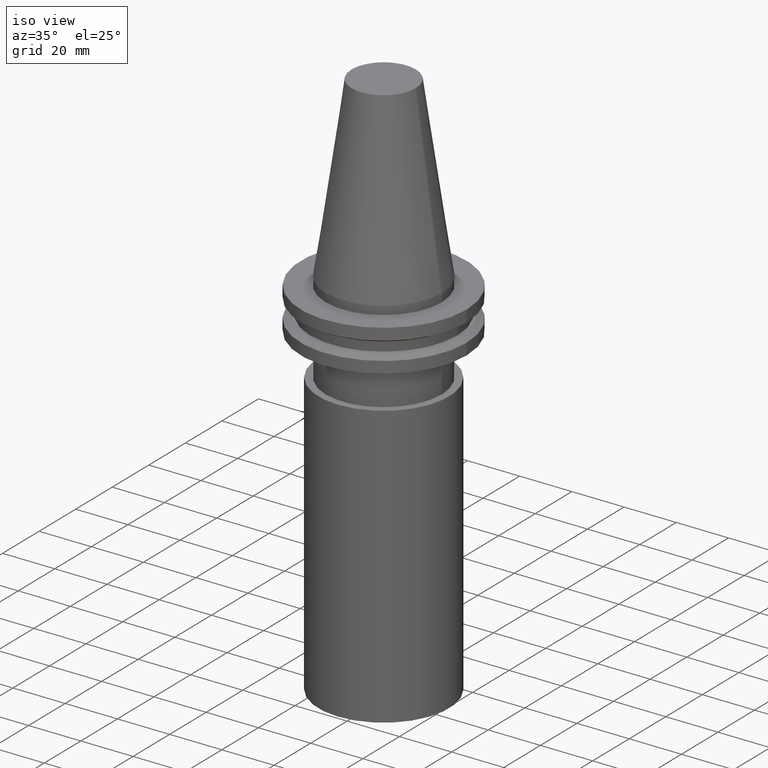
[diagram: clean part render]
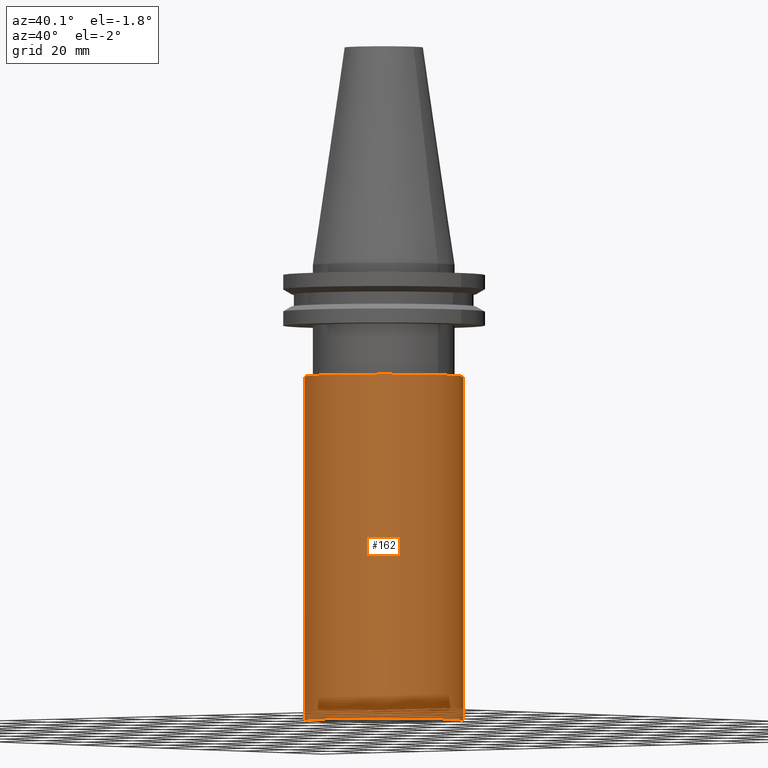
[diagram: tour spotlight — one face highlighted and labeled with its STEP entity id]
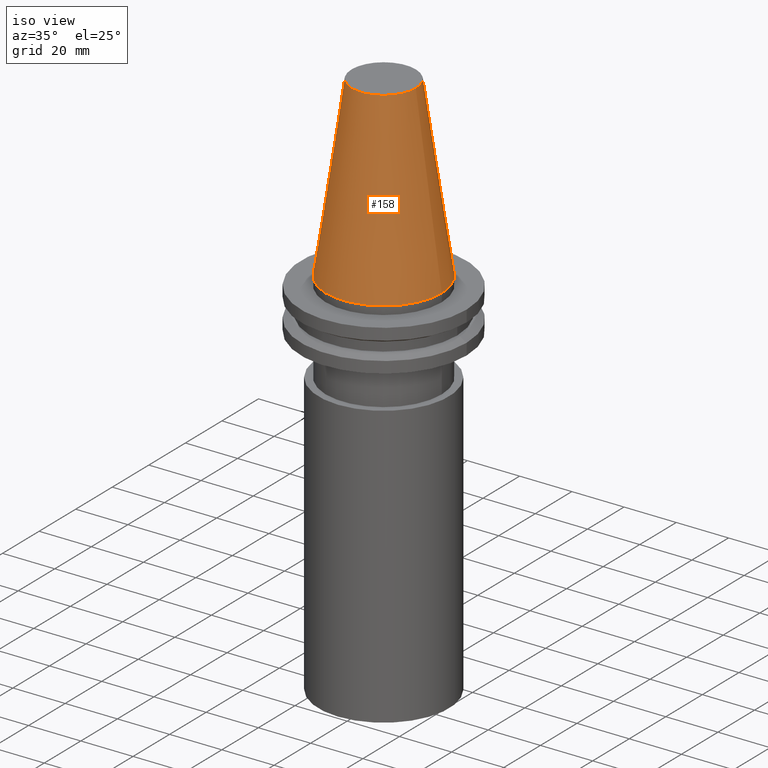
[diagram: tour spotlight — one face highlighted and labeled with its STEP entity id]
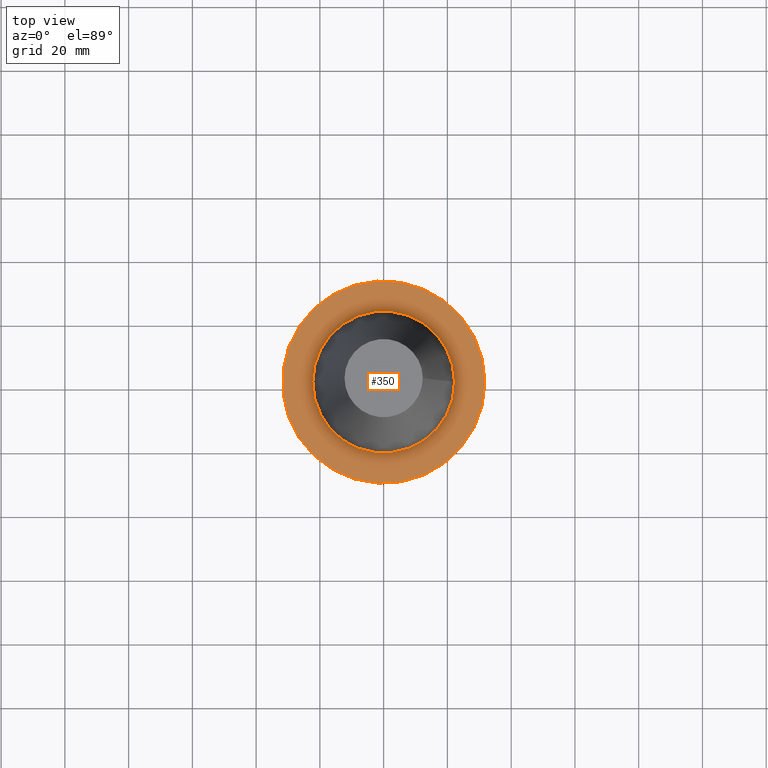
[diagram: tour spotlight — one face highlighted and labeled with its STEP entity id]
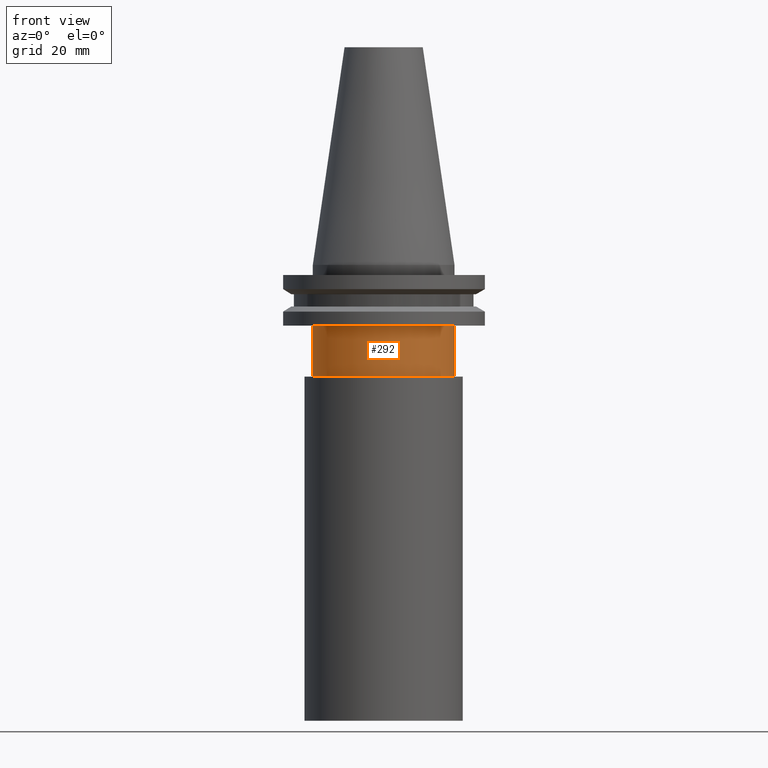
[diagram: tour spotlight — one face highlighted and labeled with its STEP entity id]
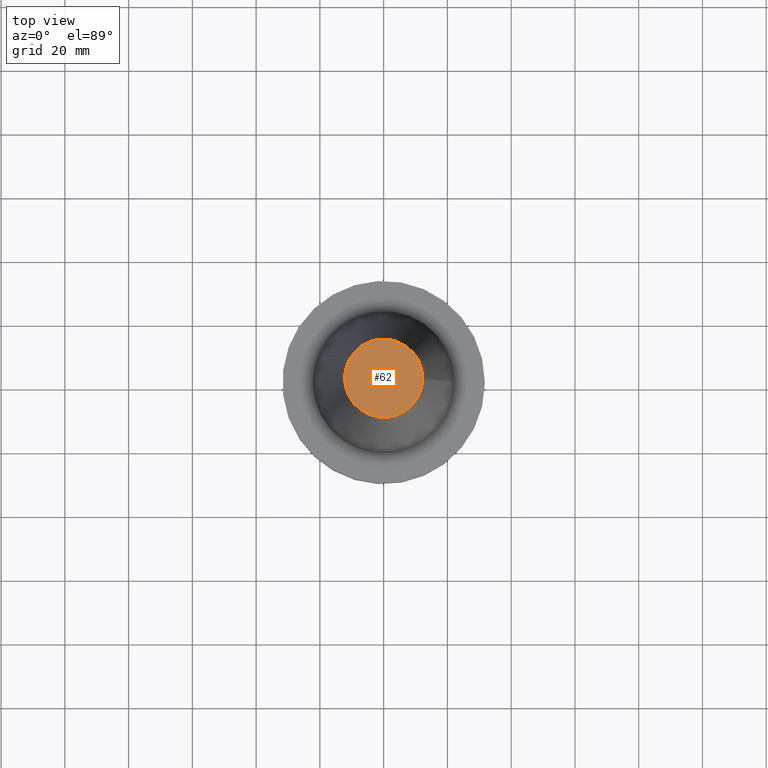
[diagram: tour spotlight — one face highlighted and labeled with its STEP entity id]
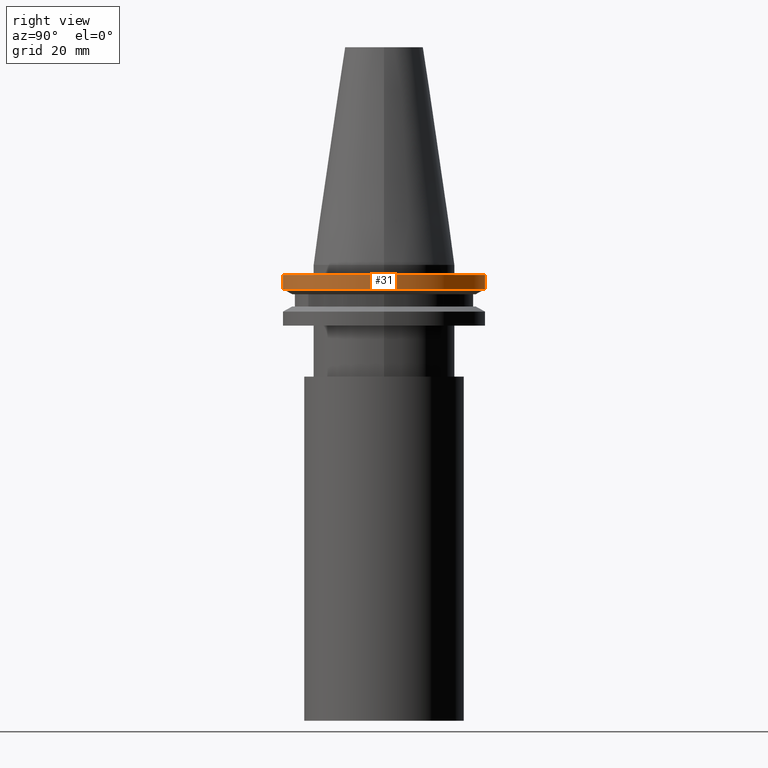
[diagram: tour spotlight — one face highlighted and labeled with its STEP entity id]
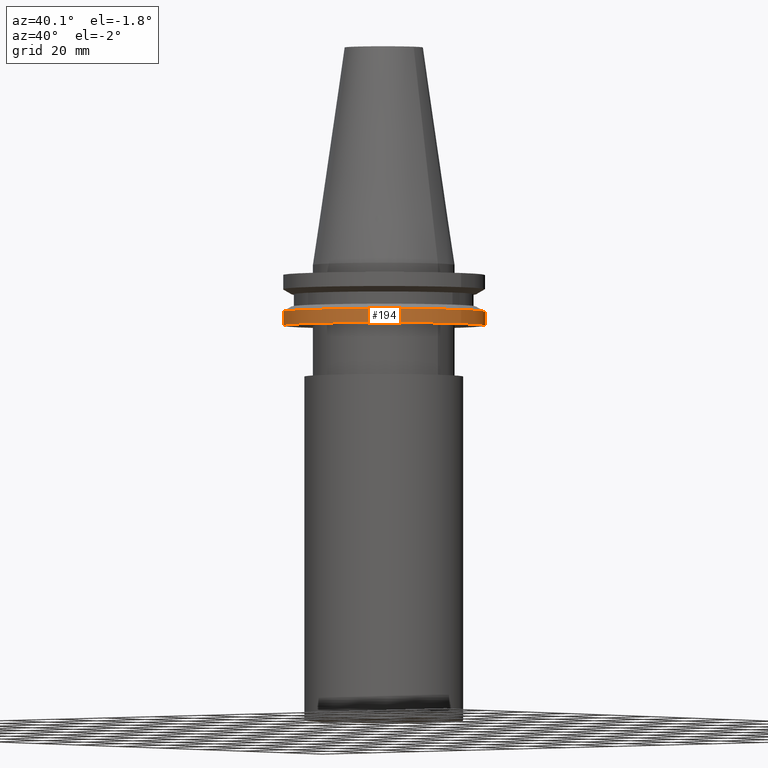
[diagram: tour spotlight — one face highlighted and labeled with its STEP entity id]
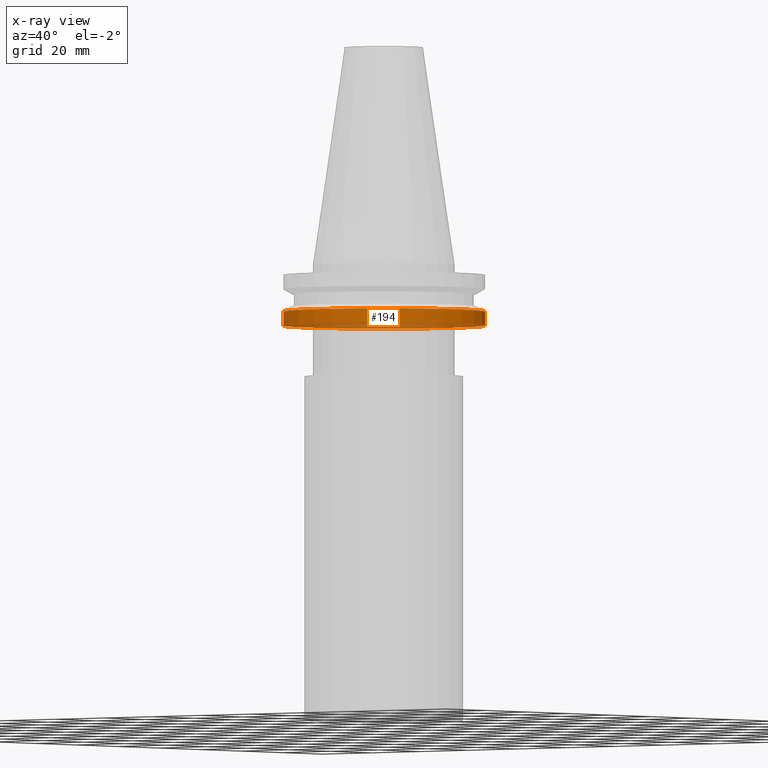
[diagram: x-ray of the same camera — body ghosted, this tour face saturated]
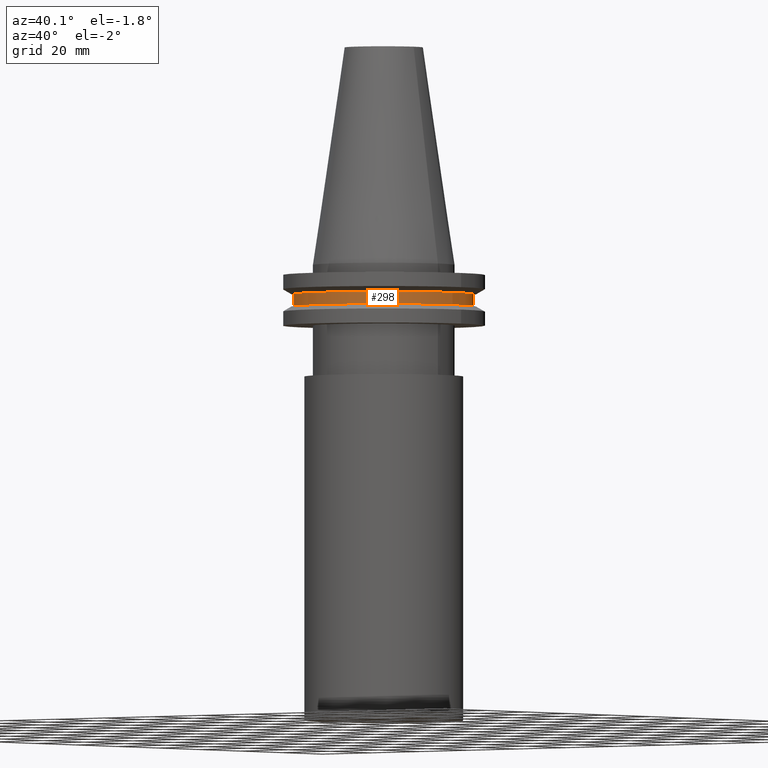
[diagram: tour spotlight — one face highlighted and labeled with its STEP entity id]
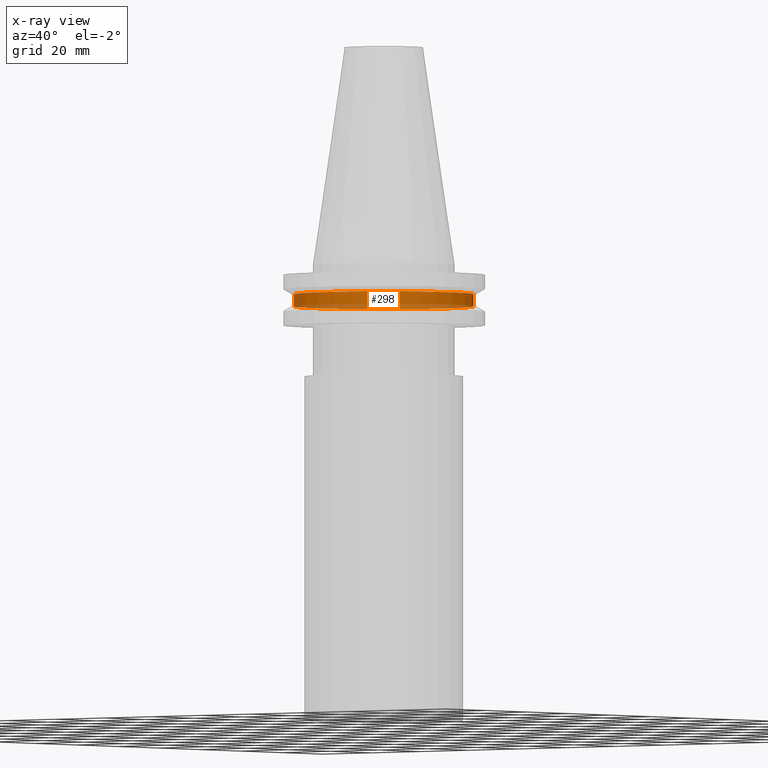
[diagram: x-ray of the same camera — body ghosted, this tour face saturated]
A machine part: a face-by-face anatomy tour. The part has 16 B-rep faces; the first image is the clean iso view, then the 8 largest visible faces are spotlighted one at a time (largest first), each with its STEP entity span.

Face 1 — auxiliary view, entity #162. In plain terms, the highlighted cylindrical surface (bore or boss wall) has radius 25 mm, axis along (-0, 0, -1).
Definition (entity closure, byte-faithful):
#2 = FACE_OUTER_BOUND ( 'NONE', #49, .T. ) ;
#7 = CYLINDRICAL_SURFACE ( 'NONE', #200, 24.99999999999999289 ) ;
#18 = DIRECTION ( 'NONE',  ( -0.000000000000000000, 9.075659465658940137E-17, -1.000000000000000000 ) ) ;
#19 = EDGE_LOOP ( 'NONE', ( #139 ) ) ;
#24 = VERTEX_POINT ( 'NONE', #91 ) ;
#37 = CARTESIAN_POINT ( 'NONE',  ( 0.000000000000000000, 9.797174393178824474E-15, -143.0000000000000000 ) ) ;
#39 = DIRECTION ( 'NONE',  ( -0.000000000000000000, 9.075659465658940137E-17, -1.000000000000000000 ) ) ;
#49 = EDGE_LOOP ( 'NONE', ( #111 ) ) ;
#58 = CARTESIAN_POINT ( 'NONE',  ( 0.000000000000000000, 25.00000000000000000, -35.04999999999999716 ) ) ;
#86 = DIRECTION ( 'NONE',  ( -0.000000000000000000, 9.075659465658940137E-17, -1.000000000000000000 ) ) ;
#91 = CARTESIAN_POINT ( 'NONE',  ( 0.000000000000000000, 25.00000000000000000, -143.0000000000000000 ) ) ;
#100 = EDGE_CURVE ( 'NONE', #212, #212, #242, .T. ) ;
#111 = ORIENTED_EDGE ( 'NONE', *, *, #235, .F. ) ;
#139 = ORIENTED_EDGE ( 'NONE', *, *, #100, .T. ) ;
#140 = AXIS2_PLACEMENT_3D ( 'NONE', #180, #86, #213 ) ;
#162 = ADVANCED_FACE ( 'NONE', ( #307, #2 ), #7, .T. ) ;
#180 = CARTESIAN_POINT ( 'NONE',  ( 0.000000000000000000, -1.540743955509788682E-30, -35.04999999999999716 ) ) ;
#200 = AXIS2_PLACEMENT_3D ( 'NONE', #37, #39, #277 ) ;
#212 = VERTEX_POINT ( 'NONE', #58 ) ;
#213 = DIRECTION ( 'NONE',  ( 0.000000000000000000, 1.000000000000000000, 0.000000000000000000 ) ) ;
#235 = EDGE_CURVE ( 'NONE', #24, #24, #243, .T. ) ;
#242 = CIRCLE ( 'NONE', #140, 25.00000000000000000 ) ;
#243 = CIRCLE ( 'NONE', #263, 24.99999999999998934 ) ;
#263 = AXIS2_PLACEMENT_3D ( 'NONE', #341, #18, #283 ) ;
#277 = DIRECTION ( 'NONE',  ( 0.000000000000000000, 1.000000000000000000, 0.000000000000000000 ) ) ;
#283 = DIRECTION ( 'NONE',  ( 0.000000000000000000, 1.000000000000000000, 0.000000000000000000 ) ) ;
#307 = FACE_OUTER_BOUND ( 'NONE', #19, .T. ) ;
#341 = CARTESIAN_POINT ( 'NONE',  ( 0.000000000000000000, 9.797174393178824474E-15, -143.0000000000000000 ) ) ;

Face 2 — iso view, entity #158. In plain terms, the highlighted conical surface has half-angle 8.297 deg.
Definition (entity closure, byte-faithful):
#21 = ORIENTED_EDGE ( 'NONE', *, *, #230, .F. ) ;
#27 = CARTESIAN_POINT ( 'NONE',  ( 12.27178102086201150, 0.000000000000000000, 68.25000000000000000 ) ) ;
#32 = DIRECTION ( 'NONE',  ( 1.000000000000000000, 0.000000000000000000, 0.000000000000000000 ) ) ;
#34 = DIRECTION ( 'NONE',  ( -0.000000000000000000, -0.000000000000000000, 1.000000000000000000 ) ) ;
#53 = VERTEX_POINT ( 'NONE', #27 ) ;
#63 = DIRECTION ( 'NONE',  ( 0.000000000000000000, 0.000000000000000000, -1.000000000000000000 ) ) ;
#70 = DIRECTION ( 'NONE',  ( -0.000000000000000000, -0.000000000000000000, 1.000000000000000000 ) ) ;
#83 = AXIS2_PLACEMENT_3D ( 'NONE', #229, #70, #289 ) ;
#101 = EDGE_CURVE ( 'NONE', #300, #300, #285, .T. ) ;
#114 = FACE_BOUND ( 'NONE', #198, .T. ) ;
#158 = ADVANCED_FACE ( 'NONE', ( #114, #251 ), #254, .T. ) ;
#186 = DIRECTION ( 'NONE',  ( -1.000000000000000000, 0.000000000000000000, 0.000000000000000000 ) ) ;
#198 = EDGE_LOOP ( 'NONE', ( #21 ) ) ;
#229 = CARTESIAN_POINT ( 'NONE',  ( 0.000000000000000000, 0.000000000000000000, 68.25000000000000000 ) ) ;
#230 = EDGE_CURVE ( 'NONE', #53, #53, #358, .T. ) ;
#251 = FACE_OUTER_BOUND ( 'NONE', #320, .T. ) ;
#254 = CONICAL_SURFACE ( 'NONE', #313, 22.22500000000000142, 0.1448138465474119174 ) ;
#285 = CIRCLE ( 'NONE', #334, 22.22500000000000142 ) ;
#289 = DIRECTION ( 'NONE',  ( 1.000000000000000000, 0.000000000000000000, 0.000000000000000000 ) ) ;
#300 = VERTEX_POINT ( 'NONE', #386 ) ;
#313 = AXIS2_PLACEMENT_3D ( 'NONE', #336, #63, #186 ) ;
#320 = EDGE_LOOP ( 'NONE', ( #352 ) ) ;
#327 = CARTESIAN_POINT ( 'NONE',  ( 0.000000000000000000, 0.000000000000000000, 0.000000000000000000 ) ) ;
#334 = AXIS2_PLACEMENT_3D ( 'NONE', #327, #34, #32 ) ;
#336 = CARTESIAN_POINT ( 'NONE',  ( 0.000000000000000000, 0.000000000000000000, 0.000000000000000000 ) ) ;
#352 = ORIENTED_EDGE ( 'NONE', *, *, #101, .T. ) ;
#358 = CIRCLE ( 'NONE', #83, 12.27178102086201150 ) ;
#386 = CARTESIAN_POINT ( 'NONE',  ( 22.22500000000000142, 0.000000000000000000, 0.000000000000000000 ) ) ;

Face 3 — top view, entity #350. In plain terms, the highlighted planar face has unit normal (0, 0, -1).
Definition (entity closure, byte-faithful):
#28 = AXIS2_PLACEMENT_3D ( 'NONE', #88, #384, #240 ) ;
#35 = CIRCLE ( 'NONE', #214, 31.75000000000000000 ) ;
#54 = DIRECTION ( 'NONE',  ( 1.000000000000000000, 0.000000000000000000, 0.000000000000000000 ) ) ;
#81 = EDGE_CURVE ( 'NONE', #326, #326, #35, .T. ) ;
#88 = CARTESIAN_POINT ( 'NONE',  ( 0.000000000000000000, 0.000000000000000000, -3.174999999999997158 ) ) ;
#113 = CARTESIAN_POINT ( 'NONE',  ( 0.000000000000000000, 0.000000000000000000, -3.174999999999997158 ) ) ;
#119 = CARTESIAN_POINT ( 'NONE',  ( 31.75000000000000000, 0.000000000000000000, -3.174999999999997158 ) ) ;
#137 = FACE_OUTER_BOUND ( 'NONE', #146, .T. ) ;
#143 = EDGE_CURVE ( 'NONE', #355, #355, #199, .T. ) ;
#146 = EDGE_LOOP ( 'NONE', ( #321 ) ) ;
#170 = CARTESIAN_POINT ( 'NONE',  ( 0.000000000000000000, 31.75000000000000000, -3.174999999999999378 ) ) ;
#174 = ORIENTED_EDGE ( 'NONE', *, *, #143, .F. ) ;
#193 = AXIS2_PLACEMENT_3D ( 'NONE', #170, #375, #287 ) ;
#199 = CIRCLE ( 'NONE', #28, 22.22500000000000142 ) ;
#208 = CARTESIAN_POINT ( 'NONE',  ( 22.22500000000000142, 0.000000000000000000, -3.174999999999997158 ) ) ;
#214 = AXIS2_PLACEMENT_3D ( 'NONE', #113, #247, #54 ) ;
#240 = DIRECTION ( 'NONE',  ( 1.000000000000000000, 0.000000000000000000, 0.000000000000000000 ) ) ;
#247 = DIRECTION ( 'NONE',  ( -0.000000000000000000, -0.000000000000000000, 1.000000000000000000 ) ) ;
#259 = PLANE ( 'NONE',  #193 ) ;
#287 = DIRECTION ( 'NONE',  ( -1.000000000000000000, 0.000000000000000000, -0.000000000000000000 ) ) ;
#321 = ORIENTED_EDGE ( 'NONE', *, *, #81, .T. ) ;
#326 = VERTEX_POINT ( 'NONE', #119 ) ;
#348 = FACE_BOUND ( 'NONE', #379, .T. ) ;
#350 = ADVANCED_FACE ( 'NONE', ( #348, #137 ), #259, .F. ) ;
#355 = VERTEX_POINT ( 'NONE', #208 ) ;
#375 = DIRECTION ( 'NONE',  ( 0.000000000000000000, 0.000000000000000000, -1.000000000000000000 ) ) ;
#379 = EDGE_LOOP ( 'NONE', ( #174 ) ) ;
#384 = DIRECTION ( 'NONE',  ( -0.000000000000000000, -0.000000000000000000, 1.000000000000000000 ) ) ;

Face 4 — front view, entity #292. In plain terms, the highlighted cylindrical surface (bore or boss wall) has radius 22.225 mm, axis along (-0, -0, 1).
Definition (entity closure, byte-faithful):
#6 = EDGE_CURVE ( 'NONE', #133, #133, #207, .T. ) ;
#15 = FACE_OUTER_BOUND ( 'NONE', #102, .T. ) ;
#48 = DIRECTION ( 'NONE',  ( -0.000000000000000000, -0.000000000000000000, 1.000000000000000000 ) ) ;
#79 = DIRECTION ( 'NONE',  ( 1.000000000000000000, 0.000000000000000000, 0.000000000000000000 ) ) ;
#102 = EDGE_LOOP ( 'NONE', ( #376 ) ) ;
#110 = FACE_OUTER_BOUND ( 'NONE', #258, .T. ) ;
#133 = VERTEX_POINT ( 'NONE', #239 ) ;
#141 = CARTESIAN_POINT ( 'NONE',  ( 0.000000000000000000, 0.000000000000000000, -35.04999999999999716 ) ) ;
#142 = AXIS2_PLACEMENT_3D ( 'NONE', #141, #371, #282 ) ;
#171 = ORIENTED_EDGE ( 'NONE', *, *, #364, .T. ) ;
#207 = CIRCLE ( 'NONE', #339, 22.22500000000000142 ) ;
#225 = DIRECTION ( 'NONE',  ( 1.000000000000000000, 0.000000000000000000, 0.000000000000000000 ) ) ;
#233 = CARTESIAN_POINT ( 'NONE',  ( 0.000000000000000000, 0.000000000000000000, 68.25000000000000000 ) ) ;
#239 = CARTESIAN_POINT ( 'NONE',  ( 22.22500000000000142, 0.000000000000000000, -19.04999999999999716 ) ) ;
#258 = EDGE_LOOP ( 'NONE', ( #171 ) ) ;
#264 = CYLINDRICAL_SURFACE ( 'NONE', #280, 22.22500000000000142 ) ;
#266 = CARTESIAN_POINT ( 'NONE',  ( 22.22499999999999787, 0.000000000000000000, -35.04999999999999716 ) ) ;
#280 = AXIS2_PLACEMENT_3D ( 'NONE', #233, #315, #225 ) ;
#282 = DIRECTION ( 'NONE',  ( 1.000000000000000000, 0.000000000000000000, 0.000000000000000000 ) ) ;
#292 = ADVANCED_FACE ( 'NONE', ( #15, #110 ), #264, .T. ) ;
#315 = DIRECTION ( 'NONE',  ( -0.000000000000000000, -0.000000000000000000, 1.000000000000000000 ) ) ;
#318 = CARTESIAN_POINT ( 'NONE',  ( 0.000000000000000000, 0.000000000000000000, -19.04999999999999716 ) ) ;
#329 = VERTEX_POINT ( 'NONE', #266 ) ;
#330 = CIRCLE ( 'NONE', #142, 22.22499999999999787 ) ;
#339 = AXIS2_PLACEMENT_3D ( 'NONE', #318, #48, #79 ) ;
#364 = EDGE_CURVE ( 'NONE', #329, #329, #330, .T. ) ;
#371 = DIRECTION ( 'NONE',  ( -0.000000000000000000, -0.000000000000000000, 1.000000000000000000 ) ) ;
#376 = ORIENTED_EDGE ( 'NONE', *, *, #6, .F. ) ;

Face 5 — top view, entity #62. In plain terms, the highlighted planar face has unit normal (0, 0, -1).
Definition (entity closure, byte-faithful):
#27 = CARTESIAN_POINT ( 'NONE',  ( 12.27178102086201150, 0.000000000000000000, 68.25000000000000000 ) ) ;
#53 = VERTEX_POINT ( 'NONE', #27 ) ;
#61 = PLANE ( 'NONE',  #388 ) ;
#62 = ADVANCED_FACE ( 'NONE', ( #209 ), #61, .F. ) ;
#70 = DIRECTION ( 'NONE',  ( -0.000000000000000000, -0.000000000000000000, 1.000000000000000000 ) ) ;
#83 = AXIS2_PLACEMENT_3D ( 'NONE', #229, #70, #289 ) ;
#148 = DIRECTION ( 'NONE',  ( 0.000000000000000000, 0.000000000000000000, -1.000000000000000000 ) ) ;
#185 = CARTESIAN_POINT ( 'NONE',  ( 0.000000000000000000, 12.27178102086201150, 68.25000000000000000 ) ) ;
#209 = FACE_OUTER_BOUND ( 'NONE', #286, .T. ) ;
#229 = CARTESIAN_POINT ( 'NONE',  ( 0.000000000000000000, 0.000000000000000000, 68.25000000000000000 ) ) ;
#230 = EDGE_CURVE ( 'NONE', #53, #53, #358, .T. ) ;
#269 = DIRECTION ( 'NONE',  ( -1.000000000000000000, 0.000000000000000000, -0.000000000000000000 ) ) ;
#286 = EDGE_LOOP ( 'NONE', ( #293 ) ) ;
#289 = DIRECTION ( 'NONE',  ( 1.000000000000000000, 0.000000000000000000, 0.000000000000000000 ) ) ;
#293 = ORIENTED_EDGE ( 'NONE', *, *, #230, .T. ) ;
#358 = CIRCLE ( 'NONE', #83, 12.27178102086201150 ) ;
#388 = AXIS2_PLACEMENT_3D ( 'NONE', #185, #148, #269 ) ;

Face 6 — right view, entity #31. In plain terms, the highlighted cylindrical surface (bore or boss wall) has radius 31.75 mm, axis along (-0, -0, 1).
Definition (entity closure, byte-faithful):
#31 = ADVANCED_FACE ( 'NONE', ( #218, #325 ), #211, .T. ) ;
#35 = CIRCLE ( 'NONE', #214, 31.75000000000000000 ) ;
#54 = DIRECTION ( 'NONE',  ( 1.000000000000000000, 0.000000000000000000, 0.000000000000000000 ) ) ;
#55 = DIRECTION ( 'NONE',  ( 1.000000000000000000, 0.000000000000000000, 0.000000000000000000 ) ) ;
#57 = AXIS2_PLACEMENT_3D ( 'NONE', #197, #205, #227 ) ;
#81 = EDGE_CURVE ( 'NONE', #326, #326, #35, .T. ) ;
#82 = DIRECTION ( 'NONE',  ( -0.000000000000000000, -0.000000000000000000, 1.000000000000000000 ) ) ;
#113 = CARTESIAN_POINT ( 'NONE',  ( 0.000000000000000000, 0.000000000000000000, -3.174999999999997158 ) ) ;
#119 = CARTESIAN_POINT ( 'NONE',  ( 31.75000000000000000, 0.000000000000000000, -3.174999999999997158 ) ) ;
#134 = AXIS2_PLACEMENT_3D ( 'NONE', #248, #82, #55 ) ;
#138 = EDGE_LOOP ( 'NONE', ( #261 ) ) ;
#197 = CARTESIAN_POINT ( 'NONE',  ( 0.000000000000000000, 0.000000000000000000, -7.605276606597335842 ) ) ;
#205 = DIRECTION ( 'NONE',  ( -0.000000000000000000, -0.000000000000000000, 1.000000000000000000 ) ) ;
#206 = ORIENTED_EDGE ( 'NONE', *, *, #81, .F. ) ;
#211 = CYLINDRICAL_SURFACE ( 'NONE', #134, 31.75000000000000000 ) ;
#214 = AXIS2_PLACEMENT_3D ( 'NONE', #113, #247, #54 ) ;
#218 = FACE_OUTER_BOUND ( 'NONE', #226, .T. ) ;
#226 = EDGE_LOOP ( 'NONE', ( #206 ) ) ;
#227 = DIRECTION ( 'NONE',  ( 1.000000000000000000, 0.000000000000000000, 0.000000000000000000 ) ) ;
#247 = DIRECTION ( 'NONE',  ( -0.000000000000000000, -0.000000000000000000, 1.000000000000000000 ) ) ;
#248 = CARTESIAN_POINT ( 'NONE',  ( 0.000000000000000000, 0.000000000000000000, 68.25000000000000000 ) ) ;
#261 = ORIENTED_EDGE ( 'NONE', *, *, #328, .T. ) ;
#262 = CIRCLE ( 'NONE', #57, 31.75000000000000000 ) ;
#267 = VERTEX_POINT ( 'NONE', #302 ) ;
#302 = CARTESIAN_POINT ( 'NONE',  ( 31.75000000000000000, 0.000000000000000000, -7.605276606597335842 ) ) ;
#325 = FACE_OUTER_BOUND ( 'NONE', #138, .T. ) ;
#326 = VERTEX_POINT ( 'NONE', #119 ) ;
#328 = EDGE_CURVE ( 'NONE', #267, #267, #262, .T. ) ;

Face 7 — auxiliary view, entity #194. An x-ray twin of the same camera follows (body ghosted, this face saturated) — the face is partly hidden behind the body. In plain terms, the highlighted cylindrical surface (bore or boss wall) has radius 31.75 mm, axis along (-0, -0, 1).
Definition (entity closure, byte-faithful):
#4 = DIRECTION ( 'NONE',  ( 1.000000000000000000, 0.000000000000000000, 0.000000000000000000 ) ) ;
#29 = CIRCLE ( 'NONE', #380, 31.74999999999999289 ) ;
#65 = FACE_OUTER_BOUND ( 'NONE', #71, .T. ) ;
#67 = DIRECTION ( 'NONE',  ( -0.000000000000000000, -0.000000000000000000, 1.000000000000000000 ) ) ;
#71 = EDGE_LOOP ( 'NONE', ( #136 ) ) ;
#97 = CARTESIAN_POINT ( 'NONE',  ( 0.000000000000000000, 0.000000000000000000, -19.04999999999999716 ) ) ;
#112 = VERTEX_POINT ( 'NONE', #151 ) ;
#136 = ORIENTED_EDGE ( 'NONE', *, *, #156, .F. ) ;
#149 = AXIS2_PLACEMENT_3D ( 'NONE', #365, #368, #4 ) ;
#151 = CARTESIAN_POINT ( 'NONE',  ( 31.74999999999999289, 0.000000000000000000, -19.04999999999999716 ) ) ;
#156 = EDGE_CURVE ( 'NONE', #296, #296, #299, .T. ) ;
#177 = CARTESIAN_POINT ( 'NONE',  ( 31.75000000000000000, 0.000000000000000000, -14.65472339340266572 ) ) ;
#189 = FACE_OUTER_BOUND ( 'NONE', #196, .T. ) ;
#192 = DIRECTION ( 'NONE',  ( 1.000000000000000000, 0.000000000000000000, 0.000000000000000000 ) ) ;
#194 = ADVANCED_FACE ( 'NONE', ( #65, #189 ), #308, .T. ) ;
#196 = EDGE_LOOP ( 'NONE', ( #260 ) ) ;
#210 = EDGE_CURVE ( 'NONE', #112, #112, #29, .T. ) ;
#244 = DIRECTION ( 'NONE',  ( 1.000000000000000000, 0.000000000000000000, 0.000000000000000000 ) ) ;
#260 = ORIENTED_EDGE ( 'NONE', *, *, #210, .T. ) ;
#274 = CARTESIAN_POINT ( 'NONE',  ( 0.000000000000000000, 0.000000000000000000, -14.65472339340266572 ) ) ;
#296 = VERTEX_POINT ( 'NONE', #177 ) ;
#299 = CIRCLE ( 'NONE', #347, 31.75000000000000000 ) ;
#308 = CYLINDRICAL_SURFACE ( 'NONE', #149, 31.75000000000000000 ) ;
#347 = AXIS2_PLACEMENT_3D ( 'NONE', #274, #387, #244 ) ;
#365 = CARTESIAN_POINT ( 'NONE',  ( 0.000000000000000000, 0.000000000000000000, 68.25000000000000000 ) ) ;
#368 = DIRECTION ( 'NONE',  ( -0.000000000000000000, -0.000000000000000000, 1.000000000000000000 ) ) ;
#380 = AXIS2_PLACEMENT_3D ( 'NONE', #97, #67, #192 ) ;
#387 = DIRECTION ( 'NONE',  ( -0.000000000000000000, -0.000000000000000000, 1.000000000000000000 ) ) ;

Face 8 — auxiliary view, entity #298. An x-ray twin of the same camera follows (body ghosted, this face saturated) — the face is partly hidden behind the body. In plain terms, the highlighted cylindrical surface (bore or boss wall) has radius 28.18 mm, axis along (-0, -0, 1).
Definition (entity closure, byte-faithful):
#12 = CYLINDRICAL_SURFACE ( 'NONE', #223, 28.17999999999999972 ) ;
#26 = CARTESIAN_POINT ( 'NONE',  ( 28.17999999999999972, 0.000000000000000000, -13.05499999999999794 ) ) ;
#50 = EDGE_LOOP ( 'NONE', ( #176 ) ) ;
#75 = AXIS2_PLACEMENT_3D ( 'NONE', #310, #99, #222 ) ;
#84 = CARTESIAN_POINT ( 'NONE',  ( 28.17999999999999972, 0.000000000000000000, -9.204999999999991189 ) ) ;
#95 = CIRCLE ( 'NONE', #366, 28.17999999999999972 ) ;
#99 = DIRECTION ( 'NONE',  ( -0.000000000000000000, -0.000000000000000000, 1.000000000000000000 ) ) ;
#106 = DIRECTION ( 'NONE',  ( 1.000000000000000000, 0.000000000000000000, 0.000000000000000000 ) ) ;
#131 = DIRECTION ( 'NONE',  ( 1.000000000000000000, 0.000000000000000000, 0.000000000000000000 ) ) ;
#132 = ORIENTED_EDGE ( 'NONE', *, *, #216, .F. ) ;
#168 = FACE_OUTER_BOUND ( 'NONE', #349, .T. ) ;
#176 = ORIENTED_EDGE ( 'NONE', *, *, #224, .T. ) ;
#216 = EDGE_CURVE ( 'NONE', #271, #271, #323, .T. ) ;
#222 = DIRECTION ( 'NONE',  ( 1.000000000000000000, 0.000000000000000000, 0.000000000000000000 ) ) ;
#223 = AXIS2_PLACEMENT_3D ( 'NONE', #345, #373, #106 ) ;
#224 = EDGE_CURVE ( 'NONE', #291, #291, #95, .T. ) ;
#257 = FACE_OUTER_BOUND ( 'NONE', #50, .T. ) ;
#271 = VERTEX_POINT ( 'NONE', #84 ) ;
#291 = VERTEX_POINT ( 'NONE', #26 ) ;
#298 = ADVANCED_FACE ( 'NONE', ( #168, #257 ), #12, .T. ) ;
#310 = CARTESIAN_POINT ( 'NONE',  ( 0.000000000000000000, 0.000000000000000000, -9.204999999999991189 ) ) ;
#312 = DIRECTION ( 'NONE',  ( -0.000000000000000000, -0.000000000000000000, 1.000000000000000000 ) ) ;
#323 = CIRCLE ( 'NONE', #75, 28.17999999999999972 ) ;
#338 = CARTESIAN_POINT ( 'NONE',  ( 0.000000000000000000, 0.000000000000000000, -13.05499999999999794 ) ) ;
#345 = CARTESIAN_POINT ( 'NONE',  ( 0.000000000000000000, 0.000000000000000000, 68.25000000000000000 ) ) ;
#349 = EDGE_LOOP ( 'NONE', ( #132 ) ) ;
#366 = AXIS2_PLACEMENT_3D ( 'NONE', #338, #312, #131 ) ;
#373 = DIRECTION ( 'NONE',  ( -0.000000000000000000, -0.000000000000000000, 1.000000000000000000 ) ) ;